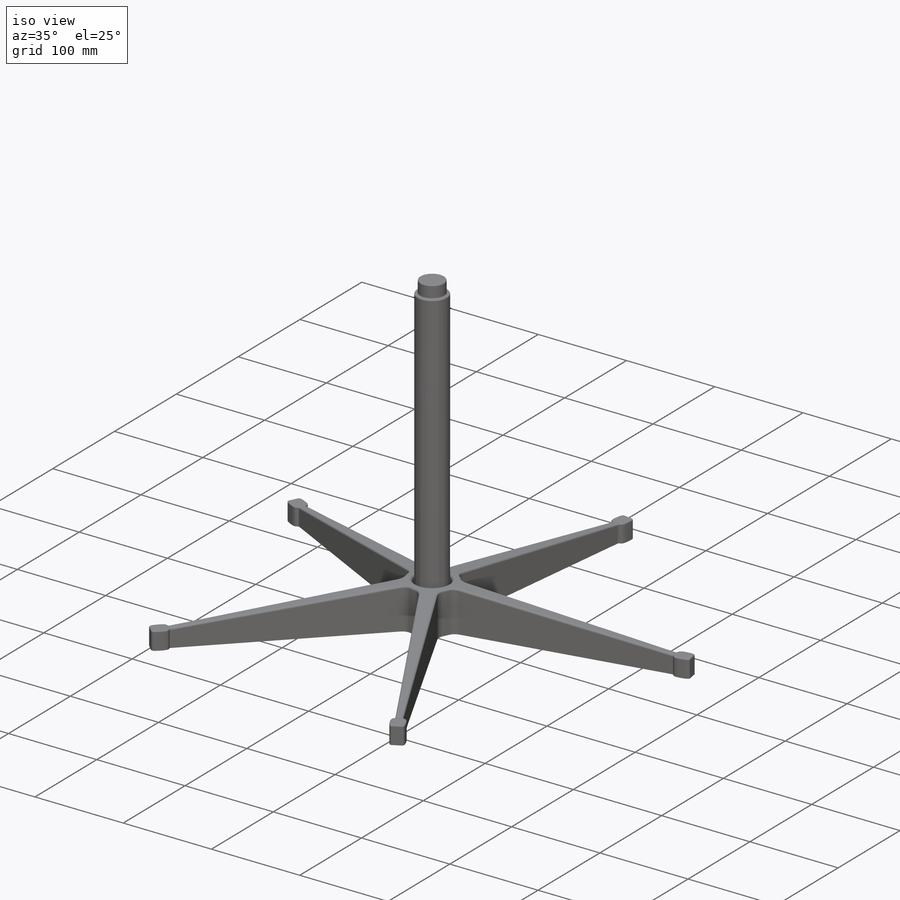
[diagram: iso view]
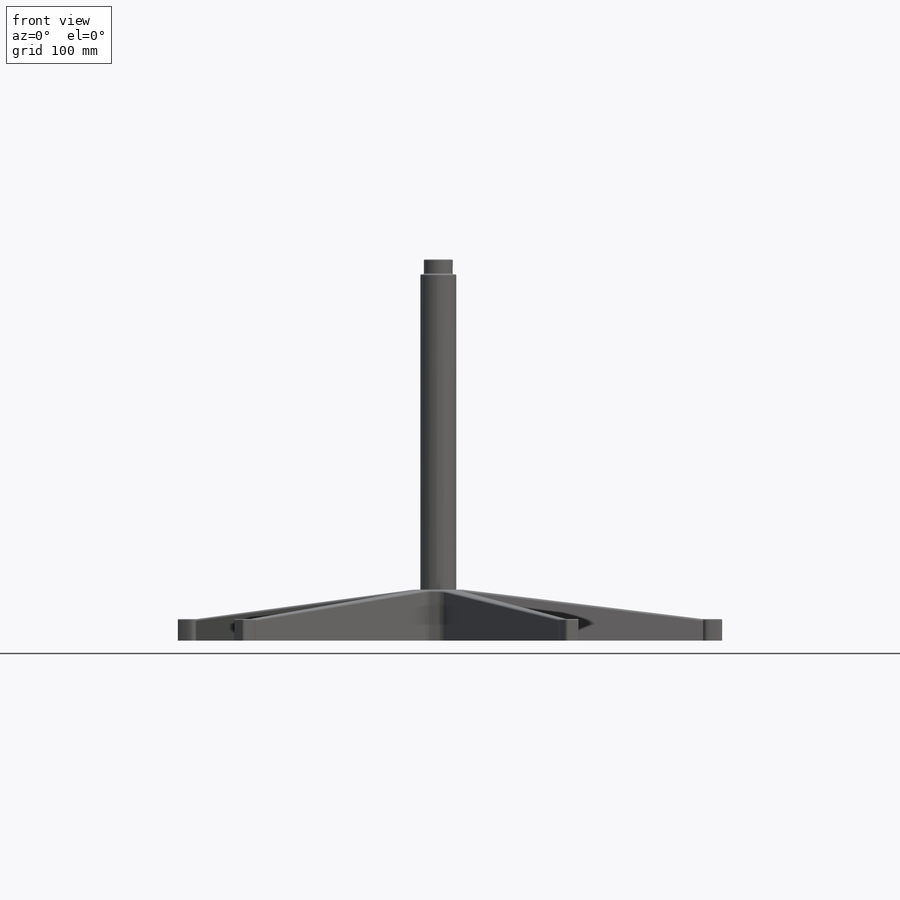
[diagram: front view]
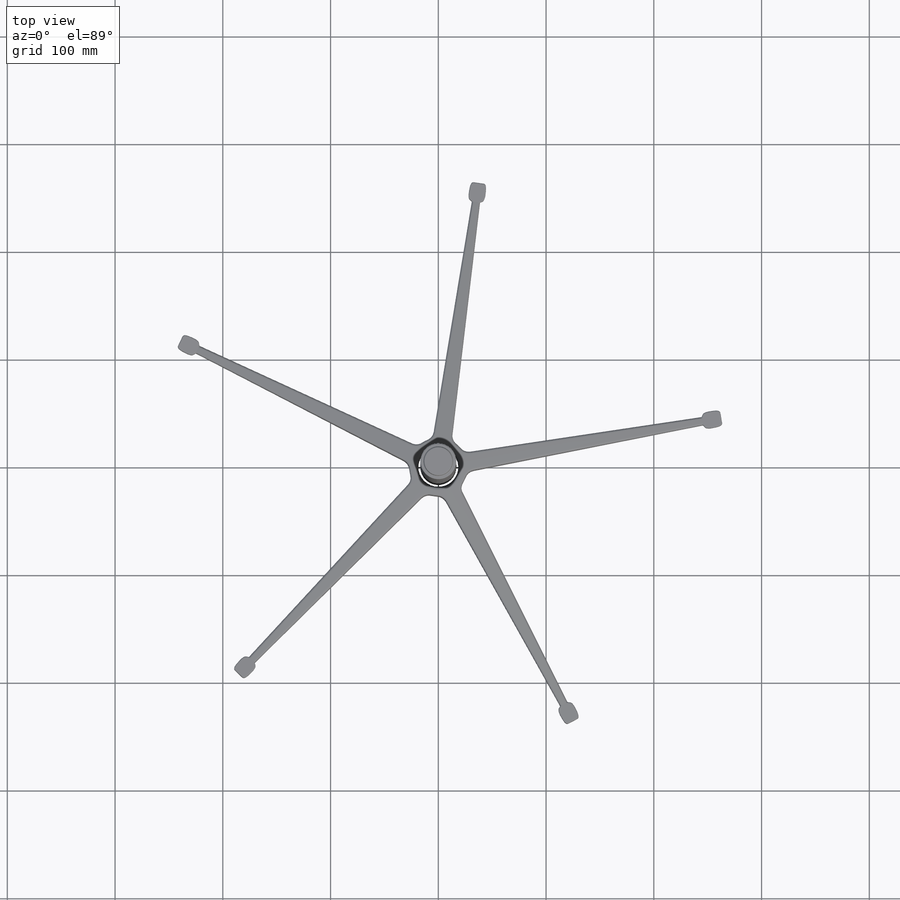
[diagram: top view]
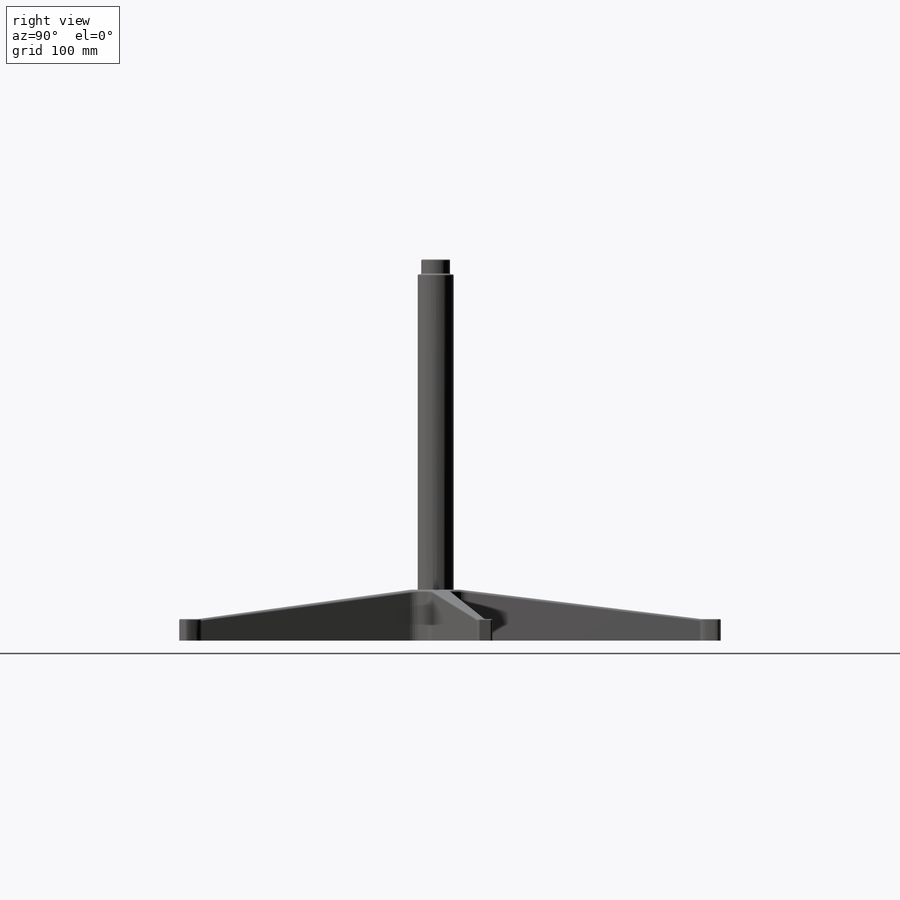
[diagram: right view]
SOLIDWORKS PART (.sldprt)
format: sldprt  version: not decoded by parser v0  size: 820,736 bytes
history: native  units: mm
features: sketch x8, fillet x3, extrude x2, material x1, cut_revolve x1, cut_extrude x1, plane x1, revolve x1 (+13 scaffold rows collapsed)
feature tree (31):
  scaffold x13  (default folders/planes/origin — collapsed)
  material  "Material <not specified>"
  sketch  "Sketch1"  dims[D1=~53.947647mm D2=10.0mm D4=37.34mm D5=~53.947647mm D3=5.0]
  extrude  "Boss-Extrude1"  Depth=50mm
  extrude  "Boss-Extrude2"  [1 undecoded]
  sketch  "Sketch1<4>"  dims[D1=20.0mm]
  sketch  "Sketch3"
  sketch  "Sketch2"  dims[D1=20.0mm]
  cut_revolve  "Cut-Revolve2"  Angle=360deg
  fillet  "Fillet1"  Radius=2mm
  fillet  "Fillet2"  Radius=1mm
  fillet  "Fillet4"  Radius=3mm
  sketch  "Sketch4"  dims[D1=8.0mm D2=5.0]
  cut_extrude  "Cut-Extrude1"  Depth=7mm
  plane  "Plane1"  Offset=30mm
  sketch  "Sketch5"  dims[D1=2.0mm]
  sketch  "Sketch6"  dims[D2=1.0mm D1=310.0mm]
  revolve  "Revolve1"  Angle=360deg
  sketch  "Sketch7"  dims[D1=0.0mm]
decode coverage: 14 of 16 modeling features carry decoded parameters
note: ~ marks probable driven/reference dimensions
note: 1 parameter value undecoded
note: suppression state not decoded; provenance and decode notes live in map.json
